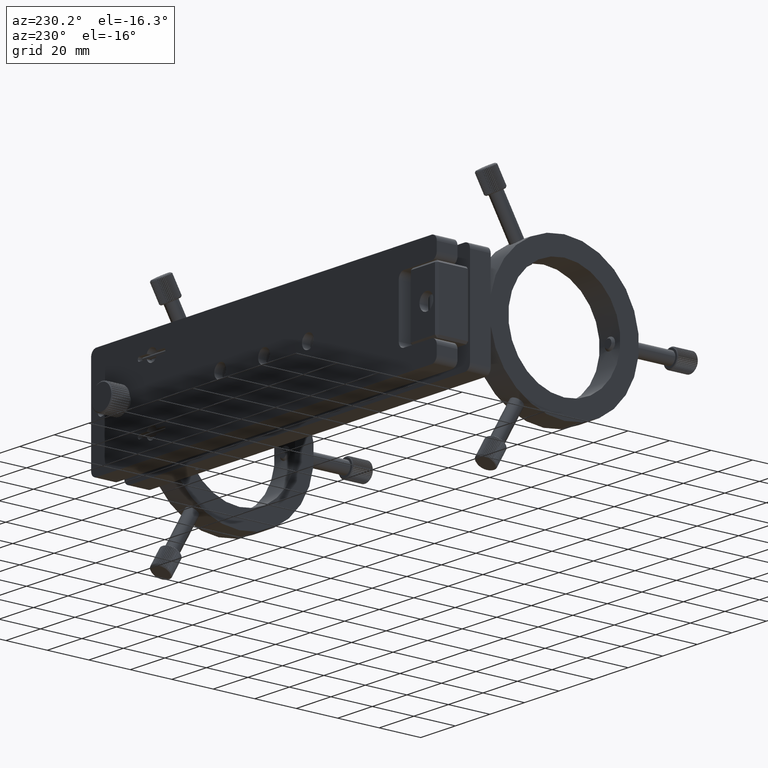
[diagram: clean part render]
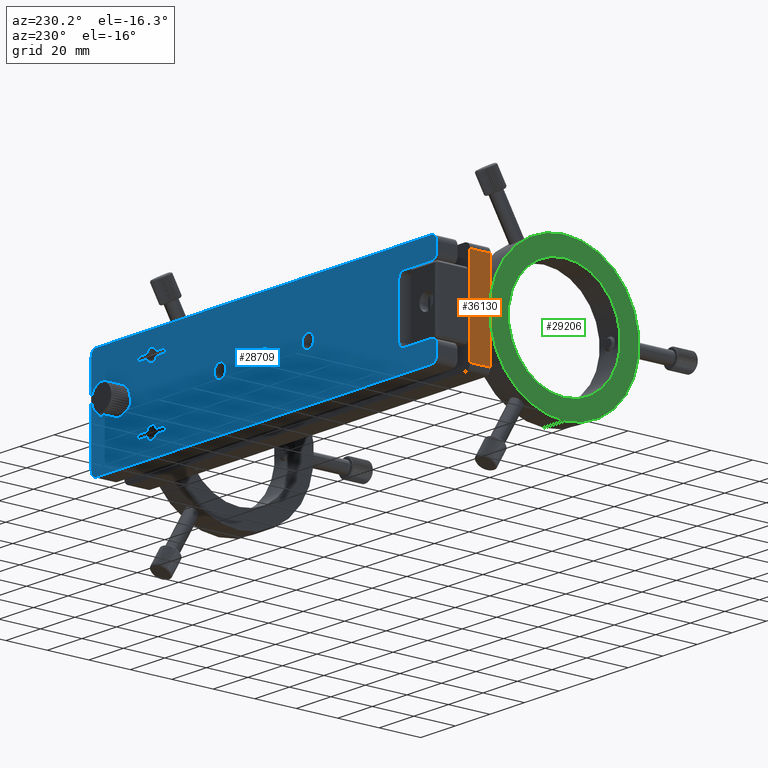
[diagram: same view with three faces highlighted in distinct colors, each labeled with its STEP entity id]
A machine part, auxiliary view with three faces highlighted in distinct colors.
Their STEP definitions:

[orange] entity #36130 — the highlighted planar face has unit normal (1, -0, 0).
#3299 = VERTEX_POINT ( 'NONE', #16335 ) ;
#4766 = EDGE_CURVE ( 'NONE', #3299, #19266, #11929, .T. ) ;
#5682 = LINE ( 'NONE', #37315, #31637 ) ;
#6554 = CARTESIAN_POINT ( 'NONE',  ( -103.6330608537691400, -17.41295791704509500, 22.00000000000000000 ) ) ;
#6964 = LINE ( 'NONE', #42878, #15775 ) ;
#7201 = VECTOR ( 'NONE', #9349, 1000.000000000000000 ) ;
#7635 = FACE_OUTER_BOUND ( 'NONE', #36363, .T. ) ;
#9349 = DIRECTION ( 'NONE',  ( -0.0000000000000000000, -1.000000000000000000, -0.0000000000000000000 ) ) ;
#11929 = LINE ( 'NONE', #16746, #7201 ) ;
#15091 = ORIENTED_EDGE ( 'NONE', *, *, #21428, .F. ) ;
#15366 = CARTESIAN_POINT ( 'NONE',  ( -103.6330608537691700, -17.41295791704509500, -22.00000000000000000 ) ) ;
#15775 = VECTOR ( 'NONE', #27893, 1000.000000000000000 ) ;
#16335 = CARTESIAN_POINT ( 'NONE',  ( -103.6330608537691700, -7.412957917045094500, -22.00000000000000000 ) ) ;
#16746 = CARTESIAN_POINT ( 'NONE',  ( -103.6330608537691700, -7.412957917045094500, -22.00000000000000000 ) ) ;
#19266 = VERTEX_POINT ( 'NONE', #15366 ) ;
#21428 = EDGE_CURVE ( 'NONE', #39651, #45129, #5682, .T. ) ;
#21791 = EDGE_CURVE ( 'NONE', #19266, #45129, #46640, .T. ) ;
#22486 = DIRECTION ( 'NONE',  ( -0.0000000000000000000, -1.000000000000000000, -0.0000000000000000000 ) ) ;
#26029 = VECTOR ( 'NONE', #29730, 1000.000000000000000 ) ;
#26846 = CARTESIAN_POINT ( 'NONE',  ( -103.6330608537691400, -7.412957917045094500, 22.00000000000000000 ) ) ;
#27861 = ORIENTED_EDGE ( 'NONE', *, *, #4766, .T. ) ;
#27893 = DIRECTION ( 'NONE',  ( -0.0000000000000000000, -0.0000000000000000000, 1.000000000000000000 ) ) ;
#29511 = EDGE_CURVE ( 'NONE', #3299, #39651, #6964, .T. ) ;
#29599 = DIRECTION ( 'NONE',  ( 1.000000000000000000, -0.0000000000000000000, 0.0000000000000000000 ) ) ;
#29730 = DIRECTION ( 'NONE',  ( -0.0000000000000000000, -0.0000000000000000000, 1.000000000000000000 ) ) ;
#30158 = ORIENTED_EDGE ( 'NONE', *, *, #21791, .T. ) ;
#31225 = CARTESIAN_POINT ( 'NONE',  ( -103.6330608537691400, -7.412957917045094500, 22.00000000000000000 ) ) ;
#31637 = VECTOR ( 'NONE', #22486, 1000.000000000000000 ) ;
#33178 = ORIENTED_EDGE ( 'NONE', *, *, #29511, .F. ) ;
#33198 = CARTESIAN_POINT ( 'NONE',  ( -103.6330608537691400, -17.41295791704509500, 22.00000000000000000 ) ) ;
#36130 = ADVANCED_FACE ( 'NONE', ( #7635 ), #41664, .F. ) ;
#36363 = EDGE_LOOP ( 'NONE', ( #30158, #15091, #33178, #27861 ) ) ;
#37315 = CARTESIAN_POINT ( 'NONE',  ( -103.6330608537691400, -7.412957917045094500, 22.00000000000000000 ) ) ;
#38550 = AXIS2_PLACEMENT_3D ( 'NONE', #26846, #29599, #40465 ) ;
#39651 = VERTEX_POINT ( 'NONE', #31225 ) ;
#40465 = DIRECTION ( 'NONE',  ( 0.0000000000000000000, 0.0000000000000000000, -1.000000000000000000 ) ) ;
#41664 = PLANE ( 'NONE',  #38550 ) ;
#42878 = CARTESIAN_POINT ( 'NONE',  ( -103.6330608537691400, -7.412957917045094500, 22.00000000000000000 ) ) ;
#45129 = VERTEX_POINT ( 'NONE', #6554 ) ;
#46640 = LINE ( 'NONE', #33198, #26029 ) ;

[blue] entity #28709 — the highlighted planar face has unit normal (-0, -1, 0).
#75 = DIRECTION ( 'NONE',  ( 2.209601736609701800E-017, 1.000000000000000000, -9.593664196835668400E-017 ) ) ;
#169 = DIRECTION ( 'NONE',  ( 0.0000000000000000000, 0.0000000000000000000, -1.000000000000000000 ) ) ;
#172 = DIRECTION ( 'NONE',  ( -1.000000000000000000, 2.209601736609700300E-017, 1.665334536937734800E-016 ) ) ;
#300 = DIRECTION ( 'NONE',  ( 0.0000000000000000000, 0.0000000000000000000, -1.000000000000000000 ) ) ;
#452 = ORIENTED_EDGE ( 'NONE', *, *, #37032, .F. ) ;
#487 = CARTESIAN_POINT ( 'NONE',  ( 64.19536627097683400, 8.587042082954889500, -13.99999999999990100 ) ) ;
#576 = AXIS2_PLACEMENT_3D ( 'NONE', #19176, #45556, #26785 ) ;
#628 = DIRECTION ( 'NONE',  ( -2.209601736609701800E-017, -1.000000000000000000, 9.593664196835668400E-017 ) ) ;
#751 = CARTESIAN_POINT ( 'NONE',  ( -100.6330608537692100, 8.587042082954896600, 15.00000000000004100 ) ) ;
#781 = LINE ( 'NONE', #25963, #7829 ) ;
#826 = VECTOR ( 'NONE', #17336, 1000.000000000000000 ) ;
#902 = EDGE_CURVE ( 'NONE', #35067, #37532, #28046, .T. ) ;
#1040 = VECTOR ( 'NONE', #22186, 1000.000000000000000 ) ;
#1177 = AXIS2_PLACEMENT_3D ( 'NONE', #37059, #14295, #25882 ) ;
#1472 = CIRCLE ( 'NONE', #12794, 3.000000000000000900 ) ;
#1658 = LINE ( 'NONE', #40946, #1040 ) ;
#1738 = FACE_BOUND ( 'NONE', #9979, .T. ) ;
#1758 = ORIENTED_EDGE ( 'NONE', *, *, #9388, .F. ) ;
#1921 = CARTESIAN_POINT ( 'NONE',  ( -29.03306085376928900, 8.587042082954893000, 5.102148123434805600E-014 ) ) ;
#2059 = CARTESIAN_POINT ( 'NONE',  ( 54.36693914623066300, 8.587042082954889500, -14.99999999999989900 ) ) ;
#2446 = CARTESIAN_POINT ( 'NONE',  ( 58.53851202148447200, 8.587042082954893000, 13.99999999999998200 ) ) ;
#2542 = DIRECTION ( 'NONE',  ( -2.209601736609701800E-017, -1.000000000000000000, 9.593664196835668400E-017 ) ) ;
#2607 = CARTESIAN_POINT ( 'NONE',  ( -103.6330608537691900, 8.587042082954896600, 22.00000000000002100 ) ) ;
#2830 = EDGE_CURVE ( 'NONE', #43974, #6410, #24462, .T. ) ;
#2847 = CARTESIAN_POINT ( 'NONE',  ( 21.76693914623067600, 8.587042082954889500, 4.256158178670435800E-014 ) ) ;
#2904 = FACE_OUTER_BOUND ( 'NONE', #21737, .T. ) ;
#3116 = CARTESIAN_POINT ( 'NONE',  ( 61.36693914623065600, 8.587042082954889500, -14.99999999999995900 ) ) ;
#3248 = CIRCLE ( 'NONE', #3363, 3.378199999999996100 ) ;
#3363 = AXIS2_PLACEMENT_3D ( 'NONE', #1921, #12912, #39287 ) ;
#3399 = VERTEX_POINT ( 'NONE', #5634 ) ;
#3538 = EDGE_CURVE ( 'NONE', #31950, #23584, #43864, .T. ) ;
#3634 = DIRECTION ( 'NONE',  ( -1.000000000000000000, 2.209601736609700300E-017, 1.665334536937734800E-016 ) ) ;
#3835 = CIRCLE ( 'NONE', #13284, 3.000000000000000900 ) ;
#4112 = CARTESIAN_POINT ( 'NONE',  ( -100.6330608537692100, 8.587042082954896600, 22.00000000000002500 ) ) ;
#4247 = VERTEX_POINT ( 'NONE', #28852 ) ;
#4345 = LINE ( 'NONE', #21745, #48530 ) ;
#4548 = DIRECTION ( 'NONE',  ( -2.209601736609701800E-017, -1.000000000000000000, 9.593664196835668400E-017 ) ) ;
#4622 = EDGE_CURVE ( 'NONE', #20129, #30860, #8996, .T. ) ;
#4809 = VERTEX_POINT ( 'NONE', #33649 ) ;
#5037 = VERTEX_POINT ( 'NONE', #40707 ) ;
#5127 = CARTESIAN_POINT ( 'NONE',  ( 54.36693914623066300, 8.587042082954889500, -15.99999999999989000 ) ) ;
#5196 = DIRECTION ( 'NONE',  ( 0.0000000000000000000, 0.0000000000000000000, -1.000000000000000000 ) ) ;
#5342 = DIRECTION ( 'NONE',  ( 2.209601736609701800E-017, 1.000000000000000000, -9.593664196835668400E-017 ) ) ;
#5393 = DIRECTION ( 'NONE',  ( -1.665334536937734800E-016, -9.593664196835668400E-017, -1.000000000000000000 ) ) ;
#5409 = CARTESIAN_POINT ( 'NONE',  ( -29.03306085376928900, 8.587042082954893000, -3.378199999999945000 ) ) ;
#5412 = DIRECTION ( 'NONE',  ( 0.0000000000000000000, 0.0000000000000000000, -1.000000000000000000 ) ) ;
#5498 = DIRECTION ( 'NONE',  ( -2.209601736609701800E-017, -1.000000000000000000, 9.593664196835668400E-017 ) ) ;
#5622 = EDGE_CURVE ( 'NONE', #4809, #20394, #8954, .T. ) ;
#5634 = CARTESIAN_POINT ( 'NONE',  ( 54.36693914623066300, 8.587042082954893000, 15.99999999999996600 ) ) ;
#5769 = ORIENTED_EDGE ( 'NONE', *, *, #44479, .T. ) ;
#5894 = AXIS2_PLACEMENT_3D ( 'NONE', #17075, #6214, #32087 ) ;
#5915 = CARTESIAN_POINT ( 'NONE',  ( -103.6330608537692200, 8.587042082954893000, -17.99999999999991100 ) ) ;
#5936 = VERTEX_POINT ( 'NONE', #43300 ) ;
#6061 = CARTESIAN_POINT ( 'NONE',  ( -100.6330608537692100, 8.587042082954893000, -21.99999999999989300 ) ) ;
#6130 = ORIENTED_EDGE ( 'NONE', *, *, #46838, .F. ) ;
#6138 = VECTOR ( 'NONE', #48402, 1000.000000000000000 ) ;
#6214 = DIRECTION ( 'NONE',  ( -2.209601736609701800E-017, -1.000000000000000000, 9.593664196835668400E-017 ) ) ;
#6310 = VERTEX_POINT ( 'NONE', #37516 ) ;
#6357 = EDGE_CURVE ( 'NONE', #23584, #31950, #11833, .T. ) ;
#6410 = VERTEX_POINT ( 'NONE', #41781 ) ;
#6677 = ORIENTED_EDGE ( 'NONE', *, *, #26074, .F. ) ;
#6830 = CARTESIAN_POINT ( 'NONE',  ( -84.63306085376922300, 8.587042082954893000, -14.99999999999993600 ) ) ;
#7234 = AXIS2_PLACEMENT_3D ( 'NONE', #27830, #16753, #9516 ) ;
#7327 = LINE ( 'NONE', #5915, #6138 ) ;
#7416 = DIRECTION ( 'NONE',  ( 0.0000000000000000000, 0.0000000000000000000, -1.000000000000000000 ) ) ;
#7796 = VECTOR ( 'NONE', #16546, 1000.000000000000000 ) ;
#7829 = VECTOR ( 'NONE', #25800, 1000.000000000000000 ) ;
#8202 = CARTESIAN_POINT ( 'NONE',  ( 64.19536627097683400, 8.587042082954889500, -13.99999999999990100 ) ) ;
#8685 = CARTESIAN_POINT ( 'NONE',  ( 96.36693914623062100, 8.587042082954885900, -21.99999999999995400 ) ) ;
#8715 = CARTESIAN_POINT ( 'NONE',  ( -100.6330608537692100, 8.587042082954893000, -14.99999999999992500 ) ) ;
#8777 = DIRECTION ( 'NONE',  ( 2.209601736609701800E-017, 1.000000000000000000, -9.593664196835668400E-017 ) ) ;
#8833 = VERTEX_POINT ( 'NONE', #47559 ) ;
#8908 = VERTEX_POINT ( 'NONE', #17846 ) ;
#8954 = CIRCLE ( 'NONE', #26285, 3.000000000000006200 ) ;
#8996 = LINE ( 'NONE', #8715, #41982 ) ;
#9162 = CARTESIAN_POINT ( 'NONE',  ( 61.36693914623065600, 8.587042082954889500, -17.99999999999996100 ) ) ;
#9230 = CIRCLE ( 'NONE', #26967, 2.500000000000000900 ) ;
#9388 = EDGE_CURVE ( 'NONE', #19678, #39144, #34113, .T. ) ;
#9516 = DIRECTION ( 'NONE',  ( 0.0000000000000000000, 0.0000000000000000000, -1.000000000000000000 ) ) ;
#9526 = DIRECTION ( 'NONE',  ( -2.209601736609701800E-017, -1.000000000000000000, 9.593664196835668400E-017 ) ) ;
#9538 = LINE ( 'NONE', #46825, #43148 ) ;
#9599 = DIRECTION ( 'NONE',  ( 0.0000000000000000000, 0.0000000000000000000, -1.000000000000000000 ) ) ;
#9811 = EDGE_CURVE ( 'NONE', #28110, #14698, #1658, .T. ) ;
#9959 = DIRECTION ( 'NONE',  ( 0.0000000000000000000, 0.0000000000000000000, -1.000000000000000000 ) ) ;
#9979 = EDGE_LOOP ( 'NONE', ( #19246, #17354, #30546, #38149, #1758, #36265, #12928, #39926, #42718, #26564 ) ) ;
#9982 = FACE_BOUND ( 'NONE', #37003, .T. ) ;
#10377 = VECTOR ( 'NONE', #18361, 1000.000000000000000 ) ;
#10471 = EDGE_CURVE ( 'NONE', #44903, #15445, #43419, .T. ) ;
#10594 = ORIENTED_EDGE ( 'NONE', *, *, #11982, .T. ) ;
#10728 = EDGE_CURVE ( 'NONE', #14698, #14464, #31584, .T. ) ;
#10741 = DIRECTION ( 'NONE',  ( 0.0000000000000000000, 0.0000000000000000000, -1.000000000000000000 ) ) ;
#11007 = DIRECTION ( 'NONE',  ( -2.209601736609701800E-017, -1.000000000000000000, 9.593664196835668400E-017 ) ) ;
#11156 = EDGE_CURVE ( 'NONE', #19323, #37532, #38640, .T. ) ;
#11171 = VERTEX_POINT ( 'NONE', #21375 ) ;
#11789 = DIRECTION ( 'NONE',  ( 0.0000000000000000000, 0.0000000000000000000, -1.000000000000000000 ) ) ;
#11833 = CIRCLE ( 'NONE', #12392, 3.378199999999996100 ) ;
#11871 = VERTEX_POINT ( 'NONE', #28732 ) ;
#11982 = EDGE_CURVE ( 'NONE', #15445, #44903, #48044, .T. ) ;
#12392 = AXIS2_PLACEMENT_3D ( 'NONE', #19681, #4548, #11789 ) ;
#12558 = ORIENTED_EDGE ( 'NONE', *, *, #38240, .T. ) ;
#12794 = AXIS2_PLACEMENT_3D ( 'NONE', #41429, #628, #300 ) ;
#12912 = DIRECTION ( 'NONE',  ( -2.209601736609701800E-017, -1.000000000000000000, 9.593664196835668400E-017 ) ) ;
#12928 = ORIENTED_EDGE ( 'NONE', *, *, #11156, .T. ) ;
#13016 = EDGE_LOOP ( 'NONE', ( #10594, #33502 ) ) ;
#13284 = AXIS2_PLACEMENT_3D ( 'NONE', #21924, #25427, #44350 ) ;
#13324 = VERTEX_POINT ( 'NONE', #16804 ) ;
#13360 = CARTESIAN_POINT ( 'NONE',  ( 68.36693914623062100, 8.587042082954893000, 13.99999999999997000 ) ) ;
#13450 = PLANE ( 'NONE',  #43476 ) ;
#13903 = AXIS2_PLACEMENT_3D ( 'NONE', #2847, #25912, #29361 ) ;
#13976 = CARTESIAN_POINT ( 'NONE',  ( -84.63306085376922300, 8.587042082954896600, 15.00000000000004600 ) ) ;
#14170 = ORIENTED_EDGE ( 'NONE', *, *, #43136, .F. ) ;
#14289 = ORIENTED_EDGE ( 'NONE', *, *, #48208, .F. ) ;
#14295 = DIRECTION ( 'NONE',  ( -2.209601736609701800E-017, -1.000000000000000000, 9.593664196835668400E-017 ) ) ;
#14423 = CARTESIAN_POINT ( 'NONE',  ( -81.63306085376920900, 8.587042082954893000, -11.99999999999993100 ) ) ;
#14464 = VERTEX_POINT ( 'NONE', #8685 ) ;
#14502 = EDGE_CURVE ( 'NONE', #5936, #17895, #16609, .T. ) ;
#14615 = ORIENTED_EDGE ( 'NONE', *, *, #46482, .T. ) ;
#14634 = CIRCLE ( 'NONE', #21374, 2.250000000000000900 ) ;
#14698 = VERTEX_POINT ( 'NONE', #36290 ) ;
#14958 = ORIENTED_EDGE ( 'NONE', *, *, #6357, .T. ) ;
#15445 = VERTEX_POINT ( 'NONE', #45531 ) ;
#15562 = EDGE_CURVE ( 'NONE', #17895, #35067, #26618, .T. ) ;
#15822 = LINE ( 'NONE', #2607, #28800 ) ;
#15985 = DIRECTION ( 'NONE',  ( 0.0000000000000000000, 0.0000000000000000000, -1.000000000000000000 ) ) ;
#16370 = AXIS2_PLACEMENT_3D ( 'NONE', #37603, #29709, #10741 ) ;
#16434 = CIRCLE ( 'NONE', #46920, 3.000000000000000900 ) ;
#16546 = DIRECTION ( 'NONE',  ( -1.000000000000000000, 2.209601736609700300E-017, 1.665334536937734800E-016 ) ) ;
#16594 = CARTESIAN_POINT ( 'NONE',  ( 64.19536627097683400, 8.587042082954893000, 13.99999999999997000 ) ) ;
#16609 = LINE ( 'NONE', #39136, #7796 ) ;
#16753 = DIRECTION ( 'NONE',  ( -2.209601736609701800E-017, -1.000000000000000000, 9.593664196835668400E-017 ) ) ;
#16760 = DIRECTION ( 'NONE',  ( 2.209601736609701800E-017, 1.000000000000000000, -9.593664196835668400E-017 ) ) ;
#16804 = CARTESIAN_POINT ( 'NONE',  ( 76.36693914623062100, 8.587042082954889500, -2.499999999999946300 ) ) ;
#17075 = CARTESIAN_POINT ( 'NONE',  ( 61.36693914623065600, 8.587042082954889500, -14.99999999999995900 ) ) ;
#17164 = ORIENTED_EDGE ( 'NONE', *, *, #5622, .F. ) ;
#17334 = DIRECTION ( 'NONE',  ( 0.0000000000000000000, 0.0000000000000000000, 1.000000000000000000 ) ) ;
#17336 = DIRECTION ( 'NONE',  ( 1.000000000000000000, -2.209601736609698100E-017, 5.030698080332758400E-017 ) ) ;
#17354 = ORIENTED_EDGE ( 'NONE', *, *, #22953, .T. ) ;
#17653 = CIRCLE ( 'NONE', #35248, 2.999999999999999100 ) ;
#17676 = EDGE_CURVE ( 'NONE', #25969, #38465, #21187, .T. ) ;
#17796 = DIRECTION ( 'NONE',  ( 0.0000000000000000000, 0.0000000000000000000, -1.000000000000000000 ) ) ;
#17846 = CARTESIAN_POINT ( 'NONE',  ( 61.36693914623065600, 8.587042082954893000, 12.00000000000002000 ) ) ;
#17895 = VERTEX_POINT ( 'NONE', #5127 ) ;
#18027 = AXIS2_PLACEMENT_3D ( 'NONE', #31937, #16760, #5412 ) ;
#18185 = DIRECTION ( 'NONE',  ( 0.0000000000000000000, 0.0000000000000000000, -1.000000000000000000 ) ) ;
#18278 = CIRCLE ( 'NONE', #34121, 1.000000000000000900 ) ;
#18339 = DIRECTION ( 'NONE',  ( -2.209601736609701800E-017, -1.000000000000000000, 9.593664196835668400E-017 ) ) ;
#18361 = DIRECTION ( 'NONE',  ( -1.665334536937734800E-016, -9.593664196835669600E-017, -1.000000000000000000 ) ) ;
#18414 = ORIENTED_EDGE ( 'NONE', *, *, #20987, .F. ) ;
#18465 = CARTESIAN_POINT ( 'NONE',  ( -3.633060853769307200, 8.587042082954889500, 4.679153151052619400E-014 ) ) ;
#18509 = EDGE_CURVE ( 'NONE', #18975, #26946, #14634, .T. ) ;
#18585 = DIRECTION ( 'NONE',  ( -2.209601736609701800E-017, -1.000000000000000000, 9.593664196835668400E-017 ) ) ;
#18729 = DIRECTION ( 'NONE',  ( -1.000000000000000000, 2.209601736609698700E-017, 5.579729118605796500E-018 ) ) ;
#18889 = CARTESIAN_POINT ( 'NONE',  ( 96.36693914623062100, 8.587042082954885900, -21.99999999999995400 ) ) ;
#18922 = DIRECTION ( 'NONE',  ( -2.209601736609701800E-017, -1.000000000000000000, 9.593664196835668400E-017 ) ) ;
#18975 = VERTEX_POINT ( 'NONE', #21341 ) ;
#19118 = AXIS2_PLACEMENT_3D ( 'NONE', #29430, #18339, #18185 ) ;
#19176 = CARTESIAN_POINT ( 'NONE',  ( 76.36693914623062100, 8.587042082954889500, 5.455991740188120500E-014 ) ) ;
#19233 = VERTEX_POINT ( 'NONE', #41079 ) ;
#19246 = ORIENTED_EDGE ( 'NONE', *, *, #46053, .T. ) ;
#19276 = CARTESIAN_POINT ( 'NONE',  ( 54.36693914623066300, 8.587042082954889500, -13.99999999999989900 ) ) ;
#19323 = VERTEX_POINT ( 'NONE', #30545 ) ;
#19678 = VERTEX_POINT ( 'NONE', #487 ) ;
#19681 = CARTESIAN_POINT ( 'NONE',  ( 21.76693914623067600, 8.587042082954889500, 4.256158178670435800E-014 ) ) ;
#19785 = DIRECTION ( 'NONE',  ( -2.209601736609701800E-017, -1.000000000000000000, 9.593664196835668400E-017 ) ) ;
#20129 = VERTEX_POINT ( 'NONE', #6830 ) ;
#20394 = VERTEX_POINT ( 'NONE', #751 ) ;
#20518 = CARTESIAN_POINT ( 'NONE',  ( -81.63306085376920900, 8.587042082954893000, 12.00000000000004800 ) ) ;
#20930 = VERTEX_POINT ( 'NONE', #37685 ) ;
#20987 = EDGE_CURVE ( 'NONE', #35725, #38791, #28652, .T. ) ;
#21114 = VERTEX_POINT ( 'NONE', #9162 ) ;
#21117 = CARTESIAN_POINT ( 'NONE',  ( 61.36693914623065600, 8.587042082954893000, 15.00000000000002100 ) ) ;
#21187 = CIRCLE ( 'NONE', #19118, 2.999999999999999100 ) ;
#21301 = CIRCLE ( 'NONE', #7234, 3.378199999999996100 ) ;
#21341 = CARTESIAN_POINT ( 'NONE',  ( 90.36693914623062100, 8.587042082954889500, 2.250000000000033300 ) ) ;
#21374 = AXIS2_PLACEMENT_3D ( 'NONE', #22533, #37684, #169 ) ;
#21375 = CARTESIAN_POINT ( 'NONE',  ( 68.36693914623062100, 8.587042082954889500, -15.99999999999989300 ) ) ;
#21737 = EDGE_LOOP ( 'NONE', ( #28289, #6677, #39512, #43881, #452, #36686, #45523, #43926, #29914, #41432, #45882, #14170, #17164, #46018, #28362, #33371 ) ) ;
#21745 = CARTESIAN_POINT ( 'NONE',  ( 68.36693914623062100, 8.587042082954889500, -15.99999999999989300 ) ) ;
#21753 = FACE_BOUND ( 'NONE', #13016, .T. ) ;
#21884 = ORIENTED_EDGE ( 'NONE', *, *, #41042, .T. ) ;
#21924 = CARTESIAN_POINT ( 'NONE',  ( 61.36693914623065600, 8.587042082954893000, 15.00000000000002100 ) ) ;
#21962 = DIRECTION ( 'NONE',  ( -2.209601736609701800E-017, -1.000000000000000000, 9.593664196835668400E-017 ) ) ;
#22070 = CARTESIAN_POINT ( 'NONE',  ( 61.36693914623065600, 8.587042082954893000, 15.00000000000002100 ) ) ;
#22099 = VECTOR ( 'NONE', #27833, 1000.000000000000000 ) ;
#22186 = DIRECTION ( 'NONE',  ( 1.000000000000000000, -2.209601736609701800E-017, -3.274871782689411700E-016 ) ) ;
#22297 = DIRECTION ( 'NONE',  ( -1.283763154917418400E-016, 0.0000000000000000000, -1.000000000000000000 ) ) ;
#22457 = EDGE_CURVE ( 'NONE', #35725, #8908, #3835, .T. ) ;
#22533 = CARTESIAN_POINT ( 'NONE',  ( 90.36693914623062100, 8.587042082954889500, 3.113738686331150000E-014 ) ) ;
#22880 = VERTEX_POINT ( 'NONE', #13976 ) ;
#22899 = EDGE_CURVE ( 'NONE', #34517, #4247, #7327, .T. ) ;
#22953 = EDGE_CURVE ( 'NONE', #21114, #44284, #27374, .T. ) ;
#23156 = EDGE_CURVE ( 'NONE', #38465, #30925, #46233, .T. ) ;
#23255 = CARTESIAN_POINT ( 'NONE',  ( -3.633060853769307200, 8.587042082954889500, 4.679153151052619400E-014 ) ) ;
#23364 = DIRECTION ( 'NONE',  ( 1.000000000000000000, -2.209601736609700300E-017, -1.665334536937734800E-016 ) ) ;
#23584 = VERTEX_POINT ( 'NONE', #35441 ) ;
#23736 = DIRECTION ( 'NONE',  ( 1.000000000000000000, -2.209601736609700300E-017, -1.665334536937734800E-016 ) ) ;
#23804 = EDGE_CURVE ( 'NONE', #11171, #44284, #4345, .T. ) ;
#24134 = EDGE_CURVE ( 'NONE', #8908, #6410, #24348, .T. ) ;
#24267 = CIRCLE ( 'NONE', #25322, 2.250000000000000900 ) ;
#24348 = CIRCLE ( 'NONE', #36417, 3.000000000000000900 ) ;
#24462 = LINE ( 'NONE', #16594, #22099 ) ;
#24624 = CARTESIAN_POINT ( 'NONE',  ( -84.63306085376922300, 8.587042082954893000, -11.99999999999993400 ) ) ;
#24864 = ORIENTED_EDGE ( 'NONE', *, *, #40617, .T. ) ;
#25299 = DIRECTION ( 'NONE',  ( 2.209601736609701800E-017, 1.000000000000000000, -9.593664196835668400E-017 ) ) ;
#25318 = EDGE_LOOP ( 'NONE', ( #21884, #12558 ) ) ;
#25322 = AXIS2_PLACEMENT_3D ( 'NONE', #27760, #5498, #5196 ) ;
#25427 = DIRECTION ( 'NONE',  ( -2.209601736609701800E-017, -1.000000000000000000, 9.593664196835668400E-017 ) ) ;
#25492 = AXIS2_PLACEMENT_3D ( 'NONE', #23255, #38576, #27056 ) ;
#25590 = EDGE_CURVE ( 'NONE', #3399, #11871, #9538, .T. ) ;
#25635 = ORIENTED_EDGE ( 'NONE', *, *, #28295, .T. ) ;
#25666 = CARTESIAN_POINT ( 'NONE',  ( 61.36693914623065600, 8.587042082954889500, -14.99999999999995900 ) ) ;
#25800 = DIRECTION ( 'NONE',  ( 1.000000000000000000, -2.209601736609700300E-017, -1.665334536937734800E-016 ) ) ;
#25882 = DIRECTION ( 'NONE',  ( 0.0000000000000000000, 0.0000000000000000000, -1.000000000000000000 ) ) ;
#25912 = DIRECTION ( 'NONE',  ( -2.209601736609701800E-017, -1.000000000000000000, 9.593664196835668400E-017 ) ) ;
#25963 = CARTESIAN_POINT ( 'NONE',  ( 68.36693914623062100, 8.587042082954893000, 15.99999999999996300 ) ) ;
#25969 = VERTEX_POINT ( 'NONE', #33099 ) ;
#26074 = EDGE_CURVE ( 'NONE', #14464, #25969, #47836, .T. ) ;
#26265 = DIRECTION ( 'NONE',  ( 0.0000000000000000000, 0.0000000000000000000, -1.000000000000000000 ) ) ;
#26285 = AXIS2_PLACEMENT_3D ( 'NONE', #29048, #2542, #17796 ) ;
#26294 = VERTEX_POINT ( 'NONE', #20518 ) ;
#26421 = CIRCLE ( 'NONE', #28155, 2.999999999999988900 ) ;
#26429 = VECTOR ( 'NONE', #23364, 1000.000000000000000 ) ;
#26516 = AXIS2_PLACEMENT_3D ( 'NONE', #46153, #19785, #15985 ) ;
#26564 = ORIENTED_EDGE ( 'NONE', *, *, #14502, .F. ) ;
#26571 = CARTESIAN_POINT ( 'NONE',  ( 68.36693914623062100, 8.587042082954893000, 14.99999999999997000 ) ) ;
#26618 = CIRCLE ( 'NONE', #31457, 1.000000000000000900 ) ;
#26699 = CARTESIAN_POINT ( 'NONE',  ( 64.19536627097683400, 8.587042082954889500, -15.99999999999989000 ) ) ;
#26724 = DIRECTION ( 'NONE',  ( 0.0000000000000000000, 0.0000000000000000000, -1.000000000000000000 ) ) ;
#26785 = DIRECTION ( 'NONE',  ( 0.0000000000000000000, 0.0000000000000000000, -1.000000000000000000 ) ) ;
#26791 = EDGE_LOOP ( 'NONE', ( #30821, #14615 ) ) ;
#26946 = VERTEX_POINT ( 'NONE', #40724 ) ;
#26967 = AXIS2_PLACEMENT_3D ( 'NONE', #43739, #44077, #9959 ) ;
#27056 = DIRECTION ( 'NONE',  ( -1.283763154917418400E-016, 0.0000000000000000000, -1.000000000000000000 ) ) ;
#27135 = EDGE_CURVE ( 'NONE', #22880, #26294, #17653, .T. ) ;
#27163 = AXIS2_PLACEMENT_3D ( 'NONE', #25666, #40307, #47887 ) ;
#27332 = DIRECTION ( 'NONE',  ( -1.000000000000000000, 2.209601736609702400E-017, 3.833738881908745700E-016 ) ) ;
#27374 = CIRCLE ( 'NONE', #32286, 3.000000000000000900 ) ;
#27760 = CARTESIAN_POINT ( 'NONE',  ( 90.36693914623062100, 8.587042082954889500, 3.113738686331150000E-014 ) ) ;
#27830 = CARTESIAN_POINT ( 'NONE',  ( -29.03306085376928900, 8.587042082954893000, 5.102148123434805600E-014 ) ) ;
#27833 = DIRECTION ( 'NONE',  ( -1.000000000000000000, 2.209601736609700300E-017, 1.665334536937734800E-016 ) ) ;
#27974 = CARTESIAN_POINT ( 'NONE',  ( 93.36693914623062100, 8.587042082954893000, 22.00000000000001800 ) ) ;
#28046 = LINE ( 'NONE', #19276, #33949 ) ;
#28110 = VERTEX_POINT ( 'NONE', #32479 ) ;
#28155 = AXIS2_PLACEMENT_3D ( 'NONE', #6061, #9526, #42985 ) ;
#28289 = ORIENTED_EDGE ( 'NONE', *, *, #17676, .F. ) ;
#28295 = EDGE_CURVE ( 'NONE', #45294, #19233, #16434, .T. ) ;
#28362 = ORIENTED_EDGE ( 'NONE', *, *, #42124, .F. ) ;
#28543 = VECTOR ( 'NONE', #18729, 1000.000000000000000 ) ;
#28652 = LINE ( 'NONE', #41459, #44601 ) ;
#28709 = ADVANCED_FACE ( 'NONE', ( #31761, #21753, #44178, #37677, #1738, #2904, #30595, #9982 ), #13450, .F. ) ;
#28732 = CARTESIAN_POINT ( 'NONE',  ( 58.53851202148447200, 8.587042082954893000, 15.99999999999996600 ) ) ;
#28794 = EDGE_CURVE ( 'NONE', #20930, #4809, #15822, .T. ) ;
#28800 = VECTOR ( 'NONE', #44117, 1000.000000000000000 ) ;
#28852 = CARTESIAN_POINT ( 'NONE',  ( -103.6330608537691900, 8.587042082954893000, -21.99999999999988600 ) ) ;
#29048 = CARTESIAN_POINT ( 'NONE',  ( -100.6330608537692100, 8.587042082954896600, 18.00000000000004300 ) ) ;
#29361 = DIRECTION ( 'NONE',  ( 0.0000000000000000000, 0.0000000000000000000, -1.000000000000000000 ) ) ;
#29410 = AXIS2_PLACEMENT_3D ( 'NONE', #26571, #37598, #26265 ) ;
#29430 = CARTESIAN_POINT ( 'NONE',  ( 93.36693914623062100, 8.587042082954893000, 22.00000000000001800 ) ) ;
#29608 = CIRCLE ( 'NONE', #27163, 3.000000000000000900 ) ;
#29709 = DIRECTION ( 'NONE',  ( -2.209601736609701800E-017, -1.000000000000000000, 9.593664196835668400E-017 ) ) ;
#29914 = ORIENTED_EDGE ( 'NONE', *, *, #34667, .F. ) ;
#29943 = AXIS2_PLACEMENT_3D ( 'NONE', #18465, #21962, #22297 ) ;
#30008 = CARTESIAN_POINT ( 'NONE',  ( -100.6330608537692100, 8.587042082954893000, -14.99999999999992500 ) ) ;
#30545 = CARTESIAN_POINT ( 'NONE',  ( 61.36693914623065600, 8.587042082954889500, -11.99999999999995700 ) ) ;
#30546 = ORIENTED_EDGE ( 'NONE', *, *, #23804, .F. ) ;
#30595 = FACE_BOUND ( 'NONE', #26791, .T. ) ;
#30802 = CARTESIAN_POINT ( 'NONE',  ( -100.6330608537692100, 8.587042082954896600, 25.00000000000002100 ) ) ;
#30821 = ORIENTED_EDGE ( 'NONE', *, *, #18509, .T. ) ;
#30860 = VERTEX_POINT ( 'NONE', #30008 ) ;
#30925 = VERTEX_POINT ( 'NONE', #30802 ) ;
#31457 = AXIS2_PLACEMENT_3D ( 'NONE', #2059, #8777, #39582 ) ;
#31584 = CIRCLE ( 'NONE', #1177, 2.999999999999999100 ) ;
#31649 = EDGE_LOOP ( 'NONE', ( #32025, #14958 ) ) ;
#31761 = FACE_BOUND ( 'NONE', #38079, .T. ) ;
#31779 = ORIENTED_EDGE ( 'NONE', *, *, #25590, .F. ) ;
#31815 = DIRECTION ( 'NONE',  ( 0.0000000000000000000, 0.0000000000000000000, -1.000000000000000000 ) ) ;
#31937 = CARTESIAN_POINT ( 'NONE',  ( 54.36693914623066300, 8.587042082954893000, 14.99999999999997200 ) ) ;
#31950 = VERTEX_POINT ( 'NONE', #35759 ) ;
#32025 = ORIENTED_EDGE ( 'NONE', *, *, #3538, .T. ) ;
#32087 = DIRECTION ( 'NONE',  ( 0.0000000000000000000, 0.0000000000000000000, -1.000000000000000000 ) ) ;
#32286 = AXIS2_PLACEMENT_3D ( 'NONE', #3116, #11007, #41300 ) ;
#32306 = CARTESIAN_POINT ( 'NONE',  ( 68.36693914623062100, 8.587042082954893000, 15.99999999999996300 ) ) ;
#32479 = CARTESIAN_POINT ( 'NONE',  ( -100.6330608537692100, 8.587042082954889500, -24.99999999999988600 ) ) ;
#33099 = CARTESIAN_POINT ( 'NONE',  ( 96.36693914623062100, 8.587042082954889500, 22.00000000000001800 ) ) ;
#33133 = EDGE_CURVE ( 'NONE', #19678, #19323, #48665, .T. ) ;
#33343 = EDGE_CURVE ( 'NONE', #30860, #34517, #46094, .T. ) ;
#33371 = ORIENTED_EDGE ( 'NONE', *, *, #23156, .F. ) ;
#33502 = ORIENTED_EDGE ( 'NONE', *, *, #10471, .T. ) ;
#33600 = DIRECTION ( 'NONE',  ( 1.665334536937734800E-016, 9.593664196835669600E-017, 1.000000000000000000 ) ) ;
#33649 = CARTESIAN_POINT ( 'NONE',  ( -103.6330608537692200, 8.587042082954896600, 18.00000000000004300 ) ) ;
#33824 = LINE ( 'NONE', #47992, #826 ) ;
#33949 = VECTOR ( 'NONE', #23736, 1000.000000000000000 ) ;
#34113 = LINE ( 'NONE', #8202, #26429 ) ;
#34121 = AXIS2_PLACEMENT_3D ( 'NONE', #43562, #25299, #17334 ) ;
#34321 = CARTESIAN_POINT ( 'NONE',  ( -84.63306085376922300, 8.587042082954893000, 12.00000000000004600 ) ) ;
#34495 = CARTESIAN_POINT ( 'NONE',  ( 93.36693914623062100, 8.587042082954893000, 25.00000000000001800 ) ) ;
#34517 = VERTEX_POINT ( 'NONE', #34550 ) ;
#34550 = CARTESIAN_POINT ( 'NONE',  ( -103.6330608537692100, 8.587042082954893000, -17.99999999999991100 ) ) ;
#34667 = EDGE_CURVE ( 'NONE', #6310, #20129, #37180, .T. ) ;
#34736 = EDGE_CURVE ( 'NONE', #39144, #11171, #18278, .T. ) ;
#34972 = CIRCLE ( 'NONE', #35610, 2.999999999999988900 ) ;
#34989 = ORIENTED_EDGE ( 'NONE', *, *, #22457, .T. ) ;
#35040 = CARTESIAN_POINT ( 'NONE',  ( 58.53851202148444300, 8.587042082954889500, -13.99999999999989900 ) ) ;
#35067 = VERTEX_POINT ( 'NONE', #41535 ) ;
#35248 = AXIS2_PLACEMENT_3D ( 'NONE', #34321, #75, #26724 ) ;
#35441 = CARTESIAN_POINT ( 'NONE',  ( 21.76693914623067600, 8.587042082954889500, 3.378200000000040500 ) ) ;
#35610 = AXIS2_PLACEMENT_3D ( 'NONE', #4112, #18922, #7416 ) ;
#35725 = VERTEX_POINT ( 'NONE', #2446 ) ;
#35759 = CARTESIAN_POINT ( 'NONE',  ( 21.76693914623067600, 8.587042082954889500, -3.378199999999953500 ) ) ;
#36265 = ORIENTED_EDGE ( 'NONE', *, *, #33133, .T. ) ;
#36290 = CARTESIAN_POINT ( 'NONE',  ( 93.36693914623062100, 8.587042082954885900, -24.99999999999995700 ) ) ;
#36417 = AXIS2_PLACEMENT_3D ( 'NONE', #21117, #43526, #31815 ) ;
#36686 = ORIENTED_EDGE ( 'NONE', *, *, #22899, .F. ) ;
#36963 = ORIENTED_EDGE ( 'NONE', *, *, #24134, .T. ) ;
#37003 = EDGE_LOOP ( 'NONE', ( #14289, #18414, #34989, #36963, #38356, #6130, #44265, #25635, #24864, #31779 ) ) ;
#37032 = EDGE_CURVE ( 'NONE', #4247, #28110, #26421, .T. ) ;
#37059 = CARTESIAN_POINT ( 'NONE',  ( 93.36693914623062100, 8.587042082954889500, -21.99999999999995400 ) ) ;
#37180 = CIRCLE ( 'NONE', #48297, 2.999999999999999100 ) ;
#37357 = CARTESIAN_POINT ( 'NONE',  ( 64.19536627097684800, 8.587042082954893000, 15.99999999999997300 ) ) ;
#37516 = CARTESIAN_POINT ( 'NONE',  ( -81.63306085376920900, 8.587042082954893000, -11.99999999999993100 ) ) ;
#37532 = VERTEX_POINT ( 'NONE', #35040 ) ;
#37598 = DIRECTION ( 'NONE',  ( 2.209601736609701800E-017, 1.000000000000000000, -9.593664196835668400E-017 ) ) ;
#37603 = CARTESIAN_POINT ( 'NONE',  ( 61.36693914623065600, 8.587042082954889500, -14.99999999999995900 ) ) ;
#37677 = FACE_BOUND ( 'NONE', #25318, .T. ) ;
#37684 = DIRECTION ( 'NONE',  ( -2.209601736609701800E-017, -1.000000000000000000, 9.593664196835668400E-017 ) ) ;
#37685 = CARTESIAN_POINT ( 'NONE',  ( -103.6330608537691900, 8.587042082954896600, 22.00000000000002100 ) ) ;
#38014 = CARTESIAN_POINT ( 'NONE',  ( 93.36693914623062100, 8.587042082954893000, 25.00000000000001800 ) ) ;
#38079 = EDGE_LOOP ( 'NONE', ( #5769, #41506 ) ) ;
#38149 = ORIENTED_EDGE ( 'NONE', *, *, #34736, .F. ) ;
#38240 = EDGE_CURVE ( 'NONE', #5037, #13324, #9230, .T. ) ;
#38356 = ORIENTED_EDGE ( 'NONE', *, *, #2830, .F. ) ;
#38465 = VERTEX_POINT ( 'NONE', #34495 ) ;
#38553 = LINE ( 'NONE', #14423, #10377 ) ;
#38576 = DIRECTION ( 'NONE',  ( -2.209601736609701800E-017, -1.000000000000000000, 9.593664196835668400E-017 ) ) ;
#38640 = CIRCLE ( 'NONE', #5894, 3.000000000000000900 ) ;
#38791 = VERTEX_POINT ( 'NONE', #43838 ) ;
#39087 = DIRECTION ( 'NONE',  ( 1.000000000000000000, -2.209601736609700300E-017, -1.665334536937734800E-016 ) ) ;
#39136 = CARTESIAN_POINT ( 'NONE',  ( 58.53851202148447200, 8.587042082954889500, -15.99999999999989000 ) ) ;
#39144 = VERTEX_POINT ( 'NONE', #46593 ) ;
#39210 = VERTEX_POINT ( 'NONE', #5409 ) ;
#39287 = DIRECTION ( 'NONE',  ( 0.0000000000000000000, 0.0000000000000000000, -1.000000000000000000 ) ) ;
#39512 = ORIENTED_EDGE ( 'NONE', *, *, #10728, .F. ) ;
#39558 = VECTOR ( 'NONE', #33600, 1000.000000000000000 ) ;
#39568 = CIRCLE ( 'NONE', #29410, 1.000000000000000900 ) ;
#39582 = DIRECTION ( 'NONE',  ( 0.0000000000000000000, 0.0000000000000000000, 1.000000000000000000 ) ) ;
#39754 = EDGE_CURVE ( 'NONE', #8833, #39210, #3248, .T. ) ;
#39926 = ORIENTED_EDGE ( 'NONE', *, *, #902, .F. ) ;
#40296 = CIRCLE ( 'NONE', #576, 2.500000000000000900 ) ;
#40307 = DIRECTION ( 'NONE',  ( -2.209601736609701800E-017, -1.000000000000000000, 9.593664196835668400E-017 ) ) ;
#40617 = EDGE_CURVE ( 'NONE', #19233, #11871, #1472, .T. ) ;
#40707 = CARTESIAN_POINT ( 'NONE',  ( 76.36693914623062100, 8.587042082954889500, 2.500000000000056800 ) ) ;
#40724 = CARTESIAN_POINT ( 'NONE',  ( 90.36693914623062100, 8.587042082954889500, -2.249999999999970200 ) ) ;
#40946 = CARTESIAN_POINT ( 'NONE',  ( -100.6330608537692100, 8.587042082954889500, -24.99999999999989000 ) ) ;
#41042 = EDGE_CURVE ( 'NONE', #13324, #5037, #40296, .T. ) ;
#41079 = CARTESIAN_POINT ( 'NONE',  ( 61.36693914623065600, 8.587042082954893000, 18.00000000000002500 ) ) ;
#41300 = DIRECTION ( 'NONE',  ( 0.0000000000000000000, 0.0000000000000000000, -1.000000000000000000 ) ) ;
#41429 = CARTESIAN_POINT ( 'NONE',  ( 61.36693914623065600, 8.587042082954893000, 15.00000000000002100 ) ) ;
#41432 = ORIENTED_EDGE ( 'NONE', *, *, #44765, .F. ) ;
#41459 = CARTESIAN_POINT ( 'NONE',  ( 54.36693914623066300, 8.587042082954893000, 13.99999999999997200 ) ) ;
#41506 = ORIENTED_EDGE ( 'NONE', *, *, #39754, .T. ) ;
#41535 = CARTESIAN_POINT ( 'NONE',  ( 54.36693914623066300, 8.587042082954889500, -13.99999999999989900 ) ) ;
#41781 = CARTESIAN_POINT ( 'NONE',  ( 64.19536627097683400, 8.587042082954893000, 13.99999999999997000 ) ) ;
#41926 = CARTESIAN_POINT ( 'NONE',  ( -3.633060853769305900, 8.587042082954889500, 3.378200000000044100 ) ) ;
#41982 = VECTOR ( 'NONE', #27332, 1000.000000000000000 ) ;
#42124 = EDGE_CURVE ( 'NONE', #30925, #20930, #34972, .T. ) ;
#42718 = ORIENTED_EDGE ( 'NONE', *, *, #15562, .F. ) ;
#42985 = DIRECTION ( 'NONE',  ( 0.0000000000000000000, 0.0000000000000000000, -1.000000000000000000 ) ) ;
#43115 = DIRECTION ( 'NONE',  ( -2.209601736609701800E-017, -1.000000000000000000, 9.593664196835668400E-017 ) ) ;
#43136 = EDGE_CURVE ( 'NONE', #20394, #22880, #33824, .T. ) ;
#43148 = VECTOR ( 'NONE', #39087, 1000.000000000000000 ) ;
#43300 = CARTESIAN_POINT ( 'NONE',  ( 58.53851202148447200, 8.587042082954889500, -15.99999999999989000 ) ) ;
#43419 = CIRCLE ( 'NONE', #25492, 3.378199999999995700 ) ;
#43476 = AXIS2_PLACEMENT_3D ( 'NONE', #27974, #43115, #5393 ) ;
#43525 = EDGE_CURVE ( 'NONE', #45294, #48120, #781, .T. ) ;
#43526 = DIRECTION ( 'NONE',  ( -2.209601736609701800E-017, -1.000000000000000000, 9.593664196835668400E-017 ) ) ;
#43562 = CARTESIAN_POINT ( 'NONE',  ( 68.36693914623062100, 8.587042082954889500, -14.99999999999990100 ) ) ;
#43739 = CARTESIAN_POINT ( 'NONE',  ( 76.36693914623062100, 8.587042082954889500, 5.455991740188120500E-014 ) ) ;
#43838 = CARTESIAN_POINT ( 'NONE',  ( 54.36693914623066300, 8.587042082954893000, 13.99999999999997200 ) ) ;
#43864 = CIRCLE ( 'NONE', #13903, 3.378199999999996100 ) ;
#43881 = ORIENTED_EDGE ( 'NONE', *, *, #9811, .F. ) ;
#43926 = ORIENTED_EDGE ( 'NONE', *, *, #4622, .F. ) ;
#43974 = VERTEX_POINT ( 'NONE', #13360 ) ;
#44077 = DIRECTION ( 'NONE',  ( -2.209601736609701800E-017, -1.000000000000000000, 9.593664196835668400E-017 ) ) ;
#44117 = DIRECTION ( 'NONE',  ( -7.105427357601041300E-015, -9.593664196835657300E-017, -1.000000000000000000 ) ) ;
#44178 = FACE_BOUND ( 'NONE', #31649, .T. ) ;
#44265 = ORIENTED_EDGE ( 'NONE', *, *, #43525, .F. ) ;
#44284 = VERTEX_POINT ( 'NONE', #26699 ) ;
#44350 = DIRECTION ( 'NONE',  ( 0.0000000000000000000, 0.0000000000000000000, -1.000000000000000000 ) ) ;
#44479 = EDGE_CURVE ( 'NONE', #39210, #8833, #21301, .T. ) ;
#44601 = VECTOR ( 'NONE', #172, 1000.000000000000000 ) ;
#44765 = EDGE_CURVE ( 'NONE', #26294, #6310, #38553, .T. ) ;
#44820 = DIRECTION ( 'NONE',  ( 0.0000000000000000000, 0.0000000000000000000, -1.000000000000000000 ) ) ;
#44903 = VERTEX_POINT ( 'NONE', #41926 ) ;
#45294 = VERTEX_POINT ( 'NONE', #37357 ) ;
#45523 = ORIENTED_EDGE ( 'NONE', *, *, #33343, .F. ) ;
#45531 = CARTESIAN_POINT ( 'NONE',  ( -3.633060853769307700, 8.587042082954889500, -3.378199999999949000 ) ) ;
#45556 = DIRECTION ( 'NONE',  ( -2.209601736609701800E-017, -1.000000000000000000, 9.593664196835668400E-017 ) ) ;
#45882 = ORIENTED_EDGE ( 'NONE', *, *, #27135, .F. ) ;
#45967 = CIRCLE ( 'NONE', #18027, 1.000000000000000900 ) ;
#46018 = ORIENTED_EDGE ( 'NONE', *, *, #28794, .F. ) ;
#46053 = EDGE_CURVE ( 'NONE', #5936, #21114, #29608, .T. ) ;
#46094 = CIRCLE ( 'NONE', #26516, 3.000000000000006200 ) ;
#46153 = CARTESIAN_POINT ( 'NONE',  ( -100.6330608537692100, 8.587042082954893000, -17.99999999999991100 ) ) ;
#46233 = LINE ( 'NONE', #38014, #28543 ) ;
#46482 = EDGE_CURVE ( 'NONE', #26946, #18975, #24267, .T. ) ;
#46593 = CARTESIAN_POINT ( 'NONE',  ( 68.36693914623062100, 8.587042082954889500, -13.99999999999990100 ) ) ;
#46825 = CARTESIAN_POINT ( 'NONE',  ( 58.53851202148447200, 8.587042082954893000, 15.99999999999996600 ) ) ;
#46838 = EDGE_CURVE ( 'NONE', #48120, #43974, #39568, .T. ) ;
#46920 = AXIS2_PLACEMENT_3D ( 'NONE', #22070, #18585, #44820 ) ;
#47559 = CARTESIAN_POINT ( 'NONE',  ( -29.03306085376928900, 8.587042082954893000, 3.378200000000048900 ) ) ;
#47836 = LINE ( 'NONE', #18889, #39558 ) ;
#47887 = DIRECTION ( 'NONE',  ( 0.0000000000000000000, 0.0000000000000000000, -1.000000000000000000 ) ) ;
#47992 = CARTESIAN_POINT ( 'NONE',  ( -84.63306085376922300, 8.587042082954896600, 15.00000000000004600 ) ) ;
#48044 = CIRCLE ( 'NONE', #29943, 3.378199999999995700 ) ;
#48120 = VERTEX_POINT ( 'NONE', #32306 ) ;
#48208 = EDGE_CURVE ( 'NONE', #38791, #3399, #45967, .T. ) ;
#48297 = AXIS2_PLACEMENT_3D ( 'NONE', #24624, #5342, #9599 ) ;
#48402 = DIRECTION ( 'NONE',  ( 6.772360450213497500E-015, -9.593664196835684400E-017, -1.000000000000000000 ) ) ;
#48530 = VECTOR ( 'NONE', #3634, 1000.000000000000000 ) ;
#48665 = CIRCLE ( 'NONE', #16370, 3.000000000000000900 ) ;

[green] entity #29206 — the highlighted planar face has unit normal (-1, -0, -0).
#712 = AXIS2_PLACEMENT_3D ( 'NONE', #45996, #4641, #31319 ) ;
#2323 = EDGE_CURVE ( 'NONE', #45982, #15437, #34460, .T. ) ;
#2401 = VERTEX_POINT ( 'NONE', #24474 ) ;
#2938 = DIRECTION ( 'NONE',  ( -1.000000000000000000, -3.427476219765678900E-016, -1.054711873393897900E-015 ) ) ;
#3960 = CIRCLE ( 'NONE', #32514, 27.00000000000002500 ) ;
#4635 = FACE_OUTER_BOUND ( 'NONE', #35996, .T. ) ;
#4641 = DIRECTION ( 'NONE',  ( -1.000000000000000000, -3.427476219765679400E-016, -1.054711873393897900E-015 ) ) ;
#4878 = DIRECTION ( 'NONE',  ( 1.054711873393898300E-015, -5.334124226075692500E-016, -1.000000000000000000 ) ) ;
#5047 = ORIENTED_EDGE ( 'NONE', *, *, #2323, .T. ) ;
#5388 = CIRCLE ( 'NONE', #712, 36.00000000000002800 ) ;
#6225 = CARTESIAN_POINT ( 'NONE',  ( -103.6330608537692500, -52.91295791704509800, 2.142730437526551800E-014 ) ) ;
#7815 = AXIS2_PLACEMENT_3D ( 'NONE', #6225, #2938, #32596 ) ;
#8073 = AXIS2_PLACEMENT_3D ( 'NONE', #43204, #13206, #43389 ) ;
#8876 = CARTESIAN_POINT ( 'NONE',  ( -103.6330608537692200, -52.91295791704511900, -26.99999999999997900 ) ) ;
#9214 = EDGE_CURVE ( 'NONE', #13801, #2401, #12828, .T. ) ;
#12828 = CIRCLE ( 'NONE', #8073, 27.00000000000002500 ) ;
#12887 = ORIENTED_EDGE ( 'NONE', *, *, #9214, .F. ) ;
#13206 = DIRECTION ( 'NONE',  ( -1.000000000000000000, -3.427476219765679400E-016, -1.054711873393897900E-015 ) ) ;
#13270 = DIRECTION ( 'NONE',  ( 1.156482317317870500E-015, -5.782411586589352700E-016, -1.000000000000000000 ) ) ;
#13335 = ORIENTED_EDGE ( 'NONE', *, *, #47036, .T. ) ;
#13801 = VERTEX_POINT ( 'NONE', #8876 ) ;
#14413 = CARTESIAN_POINT ( 'NONE',  ( -103.6330608537692800, -17.41295791704510500, 5.979130371550706300 ) ) ;
#15437 = VERTEX_POINT ( 'NONE', #19629 ) ;
#18047 = DIRECTION ( 'NONE',  ( 1.027984282060329200E-015, -5.139921410301645900E-016, -1.000000000000000000 ) ) ;
#19034 = VERTEX_POINT ( 'NONE', #47371 ) ;
#19629 = CARTESIAN_POINT ( 'NONE',  ( -103.6330608537692200, -17.41295791704509100, -5.979130371550700900 ) ) ;
#21707 = PLANE ( 'NONE',  #7815 ) ;
#24474 = CARTESIAN_POINT ( 'NONE',  ( -103.6330608537692800, -52.91295791704507700, 27.00000000000002100 ) ) ;
#27085 = ORIENTED_EDGE ( 'NONE', *, *, #47798, .T. ) ;
#27446 = DIRECTION ( 'NONE',  ( -1.000000000000000000, -3.427476219765679400E-016, -1.054711873393897900E-015 ) ) ;
#28804 = CARTESIAN_POINT ( 'NONE',  ( -103.6330608537692900, -52.91295791704507700, 36.00000000000002100 ) ) ;
#29206 = ADVANCED_FACE ( 'NONE', ( #4635, #31154 ), #21707, .T. ) ;
#29433 = EDGE_LOOP ( 'NONE', ( #38740, #12887 ) ) ;
#30053 = AXIS2_PLACEMENT_3D ( 'NONE', #35861, #32240, #13270 ) ;
#31154 = FACE_BOUND ( 'NONE', #29433, .T. ) ;
#31319 = DIRECTION ( 'NONE',  ( 1.156482317317870500E-015, -5.782411586589352700E-016, -1.000000000000000000 ) ) ;
#31436 = CIRCLE ( 'NONE', #44212, 36.00000000000002800 ) ;
#31705 = DIRECTION ( 'NONE',  ( 1.156482317317870500E-015, -5.782411586589352700E-016, -1.000000000000000000 ) ) ;
#32240 = DIRECTION ( 'NONE',  ( -1.000000000000000000, -3.427476219765679400E-016, -1.054711873393897900E-015 ) ) ;
#32514 = AXIS2_PLACEMENT_3D ( 'NONE', #33077, #36862, #18047 ) ;
#32596 = DIRECTION ( 'NONE',  ( 1.054711873393898100E-015, -5.334124226075692500E-016, -1.000000000000000000 ) ) ;
#33077 = CARTESIAN_POINT ( 'NONE',  ( -103.6330608537692500, -52.91295791704509800, 2.142730437526551800E-014 ) ) ;
#34460 = LINE ( 'NONE', #42269, #41502 ) ;
#35024 = CARTESIAN_POINT ( 'NONE',  ( -103.6330608537692500, -52.91295791704509800, 2.142730437526551800E-014 ) ) ;
#35861 = CARTESIAN_POINT ( 'NONE',  ( -103.6330608537692500, -52.91295791704509800, 2.142730437526551800E-014 ) ) ;
#35996 = EDGE_LOOP ( 'NONE', ( #27085, #48780, #13335, #5047 ) ) ;
#36862 = DIRECTION ( 'NONE',  ( -1.000000000000000000, -3.427476219765679400E-016, -1.054711873393897900E-015 ) ) ;
#38740 = ORIENTED_EDGE ( 'NONE', *, *, #44652, .F. ) ;
#39366 = VERTEX_POINT ( 'NONE', #28804 ) ;
#41502 = VECTOR ( 'NONE', #4878, 1000.000000000000000 ) ;
#42269 = CARTESIAN_POINT ( 'NONE',  ( -103.6330608537692800, -17.41295791704510500, 5.979130371550706300 ) ) ;
#43023 = CIRCLE ( 'NONE', #30053, 36.00000000000002800 ) ;
#43204 = CARTESIAN_POINT ( 'NONE',  ( -103.6330608537692500, -52.91295791704509800, 2.142730437526551800E-014 ) ) ;
#43389 = DIRECTION ( 'NONE',  ( 1.027984282060329200E-015, -5.139921410301645900E-016, -1.000000000000000000 ) ) ;
#44212 = AXIS2_PLACEMENT_3D ( 'NONE', #35024, #27446, #31705 ) ;
#44652 = EDGE_CURVE ( 'NONE', #2401, #13801, #3960, .T. ) ;
#45057 = EDGE_CURVE ( 'NONE', #19034, #39366, #31436, .T. ) ;
#45982 = VERTEX_POINT ( 'NONE', #14413 ) ;
#45996 = CARTESIAN_POINT ( 'NONE',  ( -103.6330608537692500, -52.91295791704509800, 2.142730437526551800E-014 ) ) ;
#47036 = EDGE_CURVE ( 'NONE', #39366, #45982, #5388, .T. ) ;
#47371 = CARTESIAN_POINT ( 'NONE',  ( -103.6330608537692100, -52.91295791704511900, -35.99999999999997900 ) ) ;
#47798 = EDGE_CURVE ( 'NONE', #15437, #19034, #43023, .T. ) ;
#48780 = ORIENTED_EDGE ( 'NONE', *, *, #45057, .T. ) ;